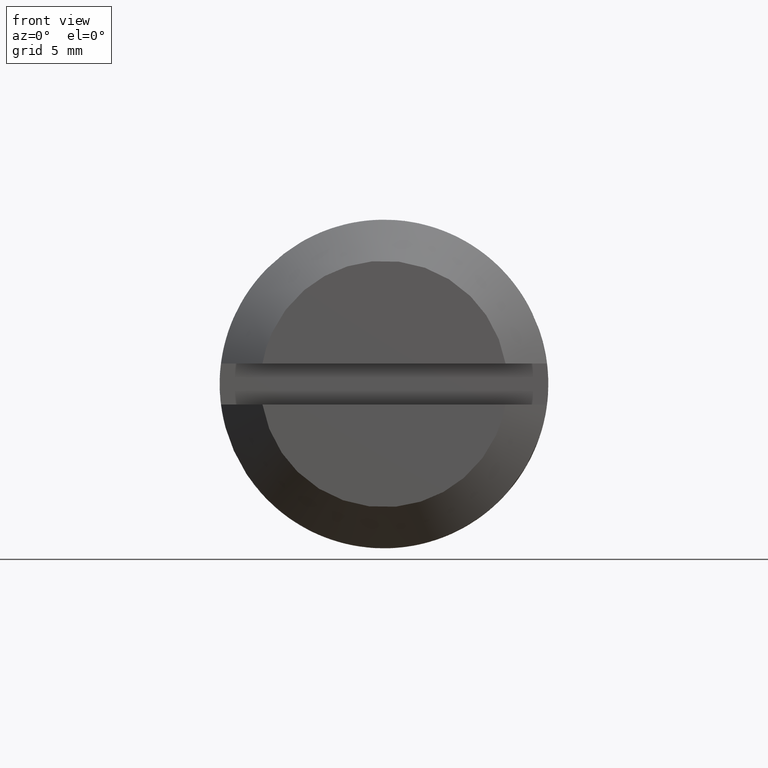
[diagram: clean part render]
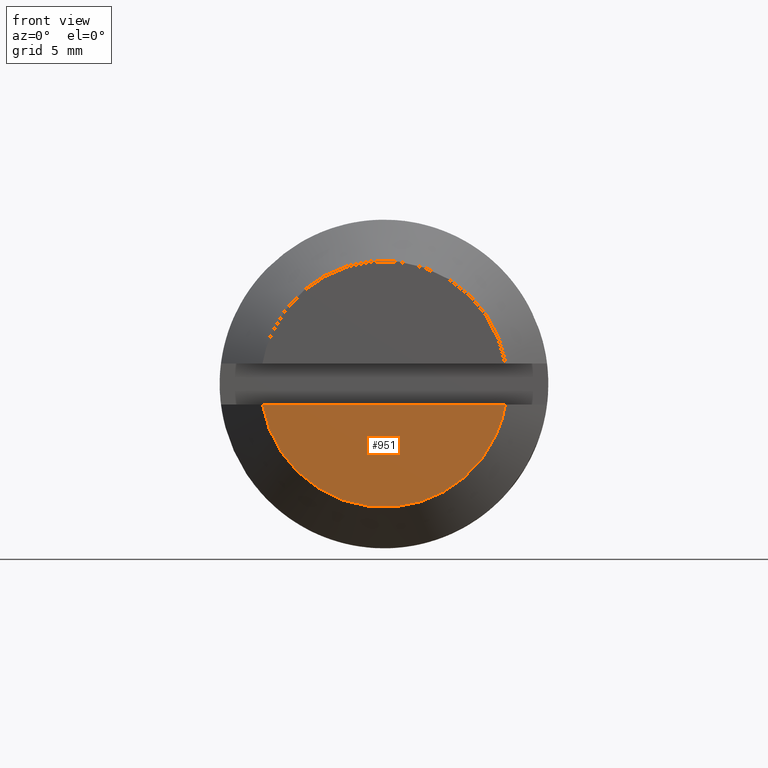
[diagram: same view with one face highlighted and labeled with its STEP entity id]
A machine part, front view. The second image highlights one B-rep face of the part: STEP entity #951.
In plain terms, the highlighted face is a freeform B-spline surface patch.
Its self-contained STEP definition (entity closure, byte-faithful):
#853=CARTESIAN_POINT('',(-5.916079783099621,-27.500000000000000,-1.0));
#854=VERTEX_POINT('',#853);
#864=CARTESIAN_POINT('',(5.916079783099621,-27.500000000000000,-1.0));
#865=VERTEX_POINT('',#864);
#866=CARTESIAN_POINT('',(5.916079783099621,-27.500000000000000,-1.0));
#867=CARTESIAN_POINT('',(-5.916079783099621,-27.500000000000000,-1.0));
#868=QUASI_UNIFORM_CURVE('',1,(#866,#867),.UNSPECIFIED.,.F.,.U.);
#869=EDGE_CURVE('',#865,#854,#868,.T.);
#928=CARTESIAN_POINT('',(-6.507096352641947,-27.500000000000000,-6.249749990309024));
#929=CARTESIAN_POINT('',(-6.507096352641947,-27.500000000000000,-0.750249875580520));
#930=CARTESIAN_POINT('',(6.507096458429697,-27.500000000000000,-6.249749990309024));
#931=CARTESIAN_POINT('',(6.507096458429697,-27.500000000000000,-0.750249875580520));
#932=B_SPLINE_SURFACE_WITH_KNOTS('',1,1,((#928,#930),(#929,#931)),.UNSPECIFIED.,.F.,.F.,.U.,(2,2),(2,2),(0.0,5.499500114728503),(0.0,13.014192811071640),.UNSPECIFIED.);
#933=ORIENTED_EDGE('',*,*,#869,.T.);
#934=CARTESIAN_POINT('',(-5.916079783099617,-27.500000000000000,-0.999999999999998));
#935=CARTESIAN_POINT('',(-5.070925528371102,-27.500000000000000,-6.000000000000003));
#936=CARTESIAN_POINT('',(0.0,-27.500000000000000,-6.000000000000002));
#937=CARTESIAN_POINT('',(5.070925528371100,-27.500000000000000,-6.000000000000003));
#938=CARTESIAN_POINT('',(5.916079783099616,-27.500000000000000,-1.000000000000001));
#946=(BOUNDED_CURVE()B_SPLINE_CURVE(2,(#934,#935,#936,#937,#938),.UNSPECIFIED.,.F.,.U.)B_SPLINE_CURVE_WITH_KNOTS((3,2,3),(0.0,0.500000000000000,1.0),.UNSPECIFIED.)CURVE()GEOMETRIC_REPRESENTATION_ITEM()RATIONAL_B_SPLINE_CURVE((1.0,0.763762615825973,1.0,0.763762615825973,1.0))REPRESENTATION_ITEM(''));
#947=EDGE_CURVE('',#854,#865,#946,.T.);
#948=ORIENTED_EDGE('',*,*,#947,.T.);
#949=EDGE_LOOP('',(#933,#948));
#950=FACE_OUTER_BOUND('',#949,.T.);
#951=ADVANCED_FACE('',(#950),#932,.F.);